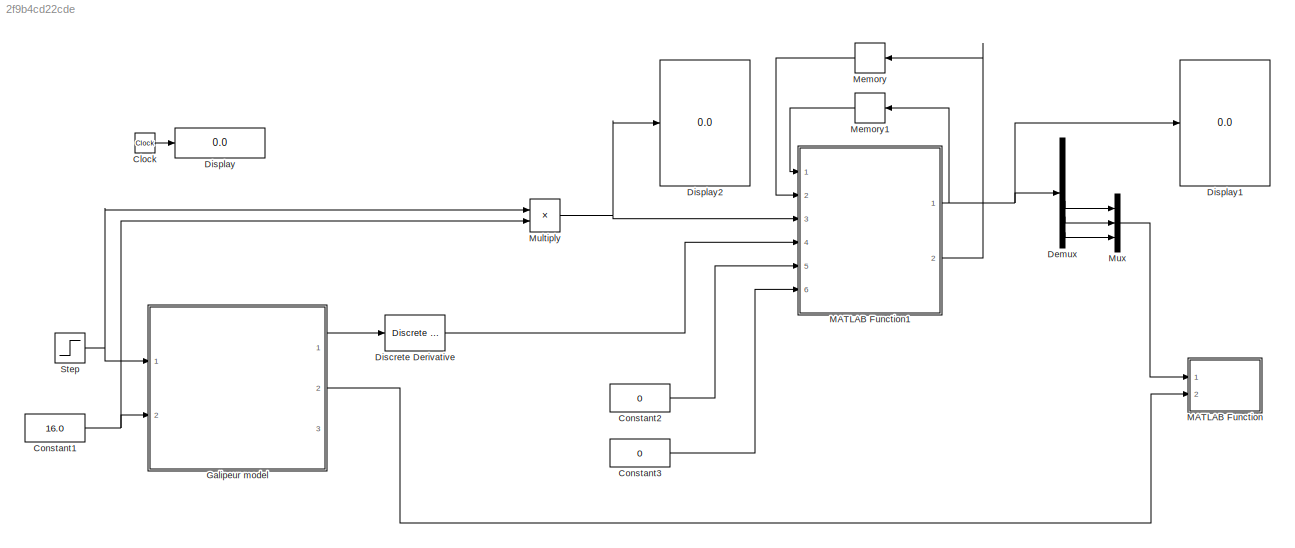
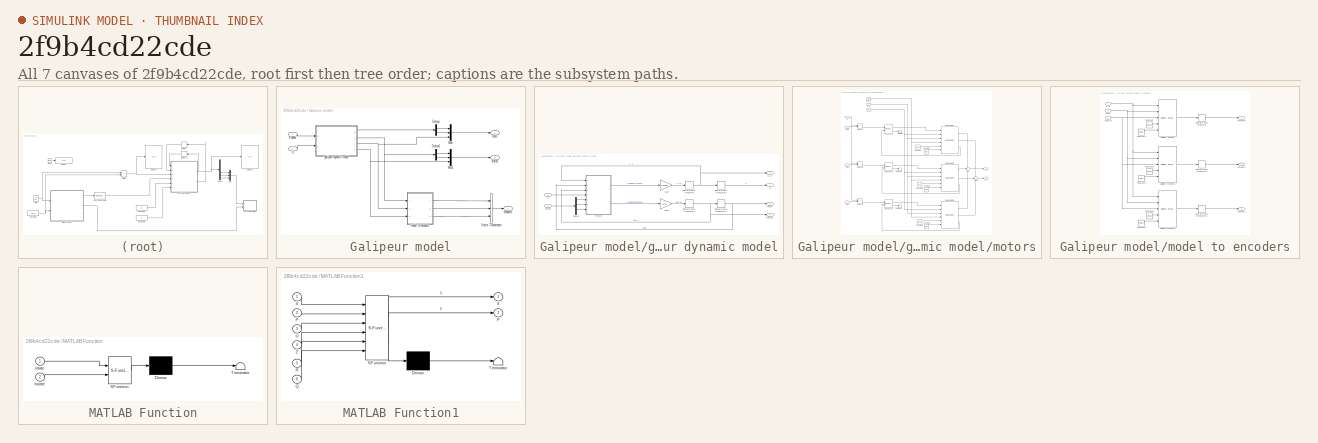
[diagram: thumbnail index - all 7 canvases of the model, root first then tree order]
MODEL slx_2f9b4cd22cde
KIND model
CONFIG AbsTol = auto
CONFIG EnableMultiTasking = off
CONFIG FixedStep = 0.02
CONFIG MaxStep = 0.05
CONFIG MinStep = auto
CONFIG RelTol = 1e-3
CONFIG SampleTimeConstraint = Unconstrained
CONFIG Solver = FixedStepAuto
CONFIG SolverName = FixedStepAuto
CONFIG StartTime = 0.0
CONFIG StopTime = 10.0
WORKSPACE source: MAT-file member
WORKSPACE FXA315_radius = 0.0254
BLOCK [Clock] Clock
BLOCK [Constant] Constant1
  Value = 16.0
  VectorParams1D = off
BLOCK [Constant] Constant2
  Value = 0
  VectorParams1D = off
BLOCK [Constant] Constant3
  Value = 0
  VectorParams1D = off
BLOCK [Demux] Demux
  DisplayOption = bar
  Outputs = 6
  Ports = [1, 6]
BLOCK [Reference] Discrete Derivative  REF=simulink/Discrete/Discrete Derivative
  Ports = [1, 1]
  SourceBlock = simulink/Discrete/Discrete Derivative
  SourceProductBaseCode = SL
  SourceProductName = Simulink
  SourceType = Discrete Derivative
BLOCK [Display] Display
  Decimation = 1
  Ports = [1]
BLOCK [Display] Display1
  Decimation = 1
  Ports = [1]
BLOCK [Display] Display2
  Decimation = 1
  Ports = [1]
BLOCK [SubSystem] Galipeur model
  Ports = [2, 3]
  RequestExecContextInheritance = off
  Variant = off
BLOCK [Demux] Galipeur model/Demux
  DisplayOption = bar
  Outputs = 2
  Ports = [1, 2]
BLOCK [Demux] Galipeur model/Demux1
  DisplayOption = bar
  Outputs = 2
  Ports = [1, 2]
BLOCK [Mux] Galipeur model/Mux
  DisplayOption = bar
  Inputs = 3
  Ports = [3, 1]
BLOCK [Mux] Galipeur model/Mux1
  DisplayOption = bar
  Inputs = 3
  Ports = [3, 1]
BLOCK [Inport] Galipeur model/PWMs
  IconDisplay = Port number
BLOCK [Inport] Galipeur model/U
  IconDisplay = Port number
  Port = 2
BLOCK [Concatenate] Galipeur model/Vector Concatenate
  NumInputs = 3
  Ports = [3, 1]
BLOCK [Outport] Galipeur model/encoders
  IconDisplay = Port number
BLOCK [SubSystem] Galipeur model/galipeur dynamic model
  Ports = [2, 4]
  RequestExecContextInheritance = off
  Variant = off
BLOCK [Demux] Galipeur model/galipeur dynamic model/Demux
  DisplayOption = bar
  Outputs = 3
  Ports = [1, 3]
BLOCK [DiscreteIntegrator] Galipeur model/galipeur dynamic model/Discrete-Time Integrator
  ICPrevOutput = DiscIntNeverNeededParam
  ICPrevScaledInput = DiscIntNeverNeededParam
  InitialConditionSetting = State (most efficient)
  Ports = [1, 1]
  SampleTime = -1
BLOCK [DiscreteIntegrator] Galipeur model/galipeur dynamic model/Discrete-Time Integrator1
  ICPrevOutput = DiscIntNeverNeededParam
  ICPrevScaledInput = DiscIntNeverNeededParam
  InitialConditionSetting = State (most efficient)
  Ports = [1, 1]
  SampleTime = -1
BLOCK [DiscreteIntegrator] Galipeur model/galipeur dynamic model/Discrete-Time Integrator2
  ICPrevOutput = DiscIntNeverNeededParam
  ICPrevScaledInput = DiscIntNeverNeededParam
  InitialConditionSetting = State (most efficient)
  Ports = [1, 1]
  SampleTime = -1
BLOCK [DiscreteIntegrator] Galipeur model/galipeur dynamic model/Discrete-Time Integrator3
  ICPrevOutput = DiscIntNeverNeededParam
  ICPrevScaledInput = DiscIntNeverNeededParam
  InitialConditionSetting = State (most efficient)
  Ports = [1, 1]
  SampleTime = -1
BLOCK [Gain] Galipeur model/galipeur dynamic model/Gain
  Gain = 1/mass
  OutDataTypeStr = Inherit: Inherit via internal rule
  ParamDataTypeStr = Inherit: Inherit via internal rule
  SaturateOnIntegerOverflow = off
BLOCK [Gain] Galipeur model/galipeur dynamic model/Gain1
  Gain = 1/Jz
  OutDataTypeStr = Inherit: Inherit via internal rule
  ParamDataTypeStr = Inherit: Inherit via internal rule
  SaturateOnIntegerOverflow = off
BLOCK [Inport] Galipeur model/galipeur dynamic model/PWMs
  IconDisplay = Port number
BLOCK [Inport] Galipeur model/galipeur dynamic model/U
  IconDisplay = Port number
  Port = 2
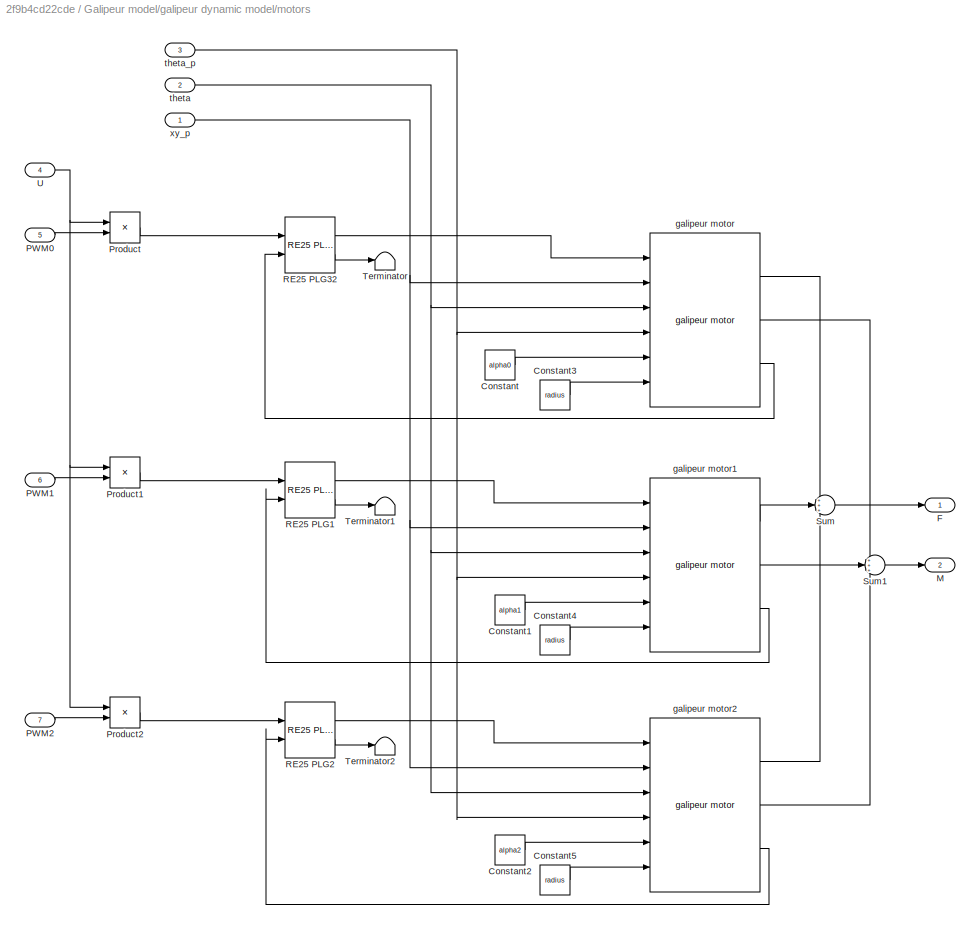
BLOCK [SubSystem] Galipeur model/galipeur dynamic model/motors
  Ports = [7, 2]
  RequestExecContextInheritance = off
  Variant = off
BLOCK [Constant] Galipeur model/galipeur dynamic model/motors/Constant
  Value = alpha0
BLOCK [Constant] Galipeur model/galipeur dynamic model/motors/Constant1
  Value = alpha1
BLOCK [Constant] Galipeur model/galipeur dynamic model/motors/Constant2
  Value = alpha2
BLOCK [Constant] Galipeur model/galipeur dynamic model/motors/Constant3
  Value = radius
BLOCK [Constant] Galipeur model/galipeur dynamic model/motors/Constant4
  Value = radius
BLOCK [Constant] Galipeur model/galipeur dynamic model/motors/Constant5
  Value = radius
BLOCK [Outport] Galipeur model/galipeur dynamic model/motors/F
  IconDisplay = Port number
BLOCK [Outport] Galipeur model/galipeur dynamic model/motors/M
  IconDisplay = Port number
  Port = 2
BLOCK [Inport] Galipeur model/galipeur dynamic model/motors/PWM0
  IconDisplay = Port number
  Port = 5
BLOCK [Inport] Galipeur model/galipeur dynamic model/motors/PWM1
  IconDisplay = Port number
  Port = 6
BLOCK [Inport] Galipeur model/galipeur dynamic model/motors/PWM2
  IconDisplay = Port number
  Port = 7
BLOCK [Product] Galipeur model/galipeur dynamic model/motors/Product
  InputSameDT = off
  OutDataTypeStr = Inherit: Inherit via internal rule
  Ports = [2, 1]
  RndMeth = Floor
  SaturateOnIntegerOverflow = off
BLOCK [Product] Galipeur model/galipeur dynamic model/motors/Product1
  InputSameDT = off
  OutDataTypeStr = Inherit: Inherit via internal rule
  Ports = [2, 1]
  RndMeth = Floor
  SaturateOnIntegerOverflow = off
BLOCK [Product] Galipeur model/galipeur dynamic model/motors/Product2
  InputSameDT = off
  OutDataTypeStr = Inherit: Inherit via internal rule
  Ports = [2, 1]
  RndMeth = Floor
  SaturateOnIntegerOverflow = off
BLOCK [Reference] Galipeur model/galipeur dynamic model/motors/RE25 PLG1  REF=galipeur_lib/RE25 PLG32  (lib defined in slx_35d7a39ee497, slx_afde5d6e38f9)
  Ports = [2, 2]
  SourceBlock = galipeur_lib/RE25 PLG32
  SourceType = SubSystem
BLOCK [Reference] Galipeur model/galipeur dynamic model/motors/RE25 PLG2  REF=galipeur_lib/RE25 PLG32  (lib defined in slx_35d7a39ee497, slx_afde5d6e38f9)
  Ports = [2, 2]
  SourceBlock = galipeur_lib/RE25 PLG32
  SourceType = SubSystem
BLOCK [Reference] Galipeur model/galipeur dynamic model/motors/RE25 PLG32  REF=galipeur_lib/RE25 PLG32  (lib defined in slx_35d7a39ee497, slx_afde5d6e38f9)
  Ports = [2, 2]
  SourceBlock = galipeur_lib/RE25 PLG32
  SourceType = SubSystem
BLOCK [Sum] Galipeur model/galipeur dynamic model/motors/Sum
  IconShape = round
  InputSameDT = off
  Inputs = +++
  OutDataTypeStr = Inherit: Inherit via internal rule
  Ports = [3, 1]
  SaturateOnIntegerOverflow = off
BLOCK [Sum] Galipeur model/galipeur dynamic model/motors/Sum1
  IconShape = round
  InputSameDT = off
  Inputs = +++
  OutDataTypeStr = Inherit: Inherit via internal rule
  Ports = [3, 1]
  SaturateOnIntegerOverflow = off
BLOCK [Terminator] Galipeur model/galipeur dynamic model/motors/Terminator
BLOCK [Terminator] Galipeur model/galipeur dynamic model/motors/Terminator1
BLOCK [Terminator] Galipeur model/galipeur dynamic model/motors/Terminator2
BLOCK [Inport] Galipeur model/galipeur dynamic model/motors/U
  IconDisplay = Port number
  Port = 4
BLOCK [Reference] Galipeur model/galipeur dynamic model/motors/galipeur motor  REF=galipeur_lib/galipeur motor  (lib defined in slx_35d7a39ee497, slx_afde5d6e38f9)
  Ports = [6, 3]
  SourceBlock = galipeur_lib/galipeur motor
  SourceType = SubSystem
BLOCK [Reference] Galipeur model/galipeur dynamic model/motors/galipeur motor1  REF=galipeur_lib/galipeur motor  (lib defined in slx_35d7a39ee497, slx_afde5d6e38f9)
  Ports = [6, 3]
  SourceBlock = galipeur_lib/galipeur motor
  SourceType = SubSystem
BLOCK [Reference] Galipeur model/galipeur dynamic model/motors/galipeur motor2  REF=galipeur_lib/galipeur motor  (lib defined in slx_35d7a39ee497, slx_afde5d6e38f9)
  Ports = [6, 3]
  SourceBlock = galipeur_lib/galipeur motor
  SourceType = SubSystem
BLOCK [Inport] Galipeur model/galipeur dynamic model/motors/theta
  IconDisplay = Port number
  Port = 2
BLOCK [Inport] Galipeur model/galipeur dynamic model/motors/theta_p
  IconDisplay = Port number
  Port = 3
BLOCK [Inport] Galipeur model/galipeur dynamic model/motors/xy_p
  IconDisplay = Port number
BLOCK [Outport] Galipeur model/galipeur dynamic model/theta
  IconDisplay = Port number
  Port = 3
BLOCK [Outport] Galipeur model/galipeur dynamic model/theta_p
  IconDisplay = Port number
  Port = 4
BLOCK [Outport] Galipeur model/galipeur dynamic model/xy 
  IconDisplay = Port number
BLOCK [Outport] Galipeur model/galipeur dynamic model/xy_p
  IconDisplay = Port number
  Port = 2
BLOCK [SubSystem] Galipeur model/model to encoders
  Ports = [3, 3]
  RequestExecContextInheritance = off
  Variant = off
BLOCK [Constant] Galipeur model/model to encoders/Constant
  Value = alpha0
BLOCK [Constant] Galipeur model/model to encoders/Constant1
  Value = radius
BLOCK [Constant] Galipeur model/model to encoders/Constant2
  Value = alpha1
BLOCK [Constant] Galipeur model/model to encoders/Constant4
  Value = radius
BLOCK [Constant] Galipeur model/model to encoders/Constant5
  Value = alpha2
BLOCK [Constant] Galipeur model/model to encoders/Constant6
  Value = radius
BLOCK [DiscreteIntegrator] Galipeur model/model to encoders/Discrete-Time Integrator
  ICPrevOutput = DiscIntNeverNeededParam
  ICPrevScaledInput = DiscIntNeverNeededParam
  InitialConditionSetting = State (most efficient)
  Ports = [1, 1]
  SampleTime = -1
BLOCK [DiscreteIntegrator] Galipeur model/model to encoders/Discrete-Time Integrator1
  ICPrevOutput = DiscIntNeverNeededParam
  ICPrevScaledInput = DiscIntNeverNeededParam
  InitialConditionSetting = State (most efficient)
  Ports = [1, 1]
  SampleTime = -1
BLOCK [DiscreteIntegrator] Galipeur model/model to encoders/Discrete-Time Integrator2
  ICPrevOutput = DiscIntNeverNeededParam
  ICPrevScaledInput = DiscIntNeverNeededParam
  InitialConditionSetting = State (most efficient)
  Ports = [1, 1]
  SampleTime = -1
BLOCK [Outport] Galipeur model/model to encoders/encoder0
  IconDisplay = Port number
BLOCK [Outport] Galipeur model/model to encoders/encoder1
  IconDisplay = Port number
  Port = 2
BLOCK [Outport] Galipeur model/model to encoders/encoder2
  IconDisplay = Port number
  Port = 3
BLOCK [Reference] Galipeur model/model to encoders/galipeur encoder  REF=galipeur_lib/galipeur encoder  (lib defined in slx_35d7a39ee497, slx_afde5d6e38f9)
  Ports = [5, 1]
  SourceBlock = galipeur_lib/galipeur encoder
  SourceType = SubSystem
BLOCK [Reference] Galipeur model/model to encoders/galipeur encoder1  REF=galipeur_lib/galipeur encoder  (lib defined in slx_35d7a39ee497, slx_afde5d6e38f9)
  Ports = [5, 1]
  SourceBlock = galipeur_lib/galipeur encoder
  SourceType = SubSystem
BLOCK [Reference] Galipeur model/model to encoders/galipeur encoder2  REF=galipeur_lib/galipeur encoder  (lib defined in slx_35d7a39ee497, slx_afde5d6e38f9)
  Ports = [5, 1]
  SourceBlock = galipeur_lib/galipeur encoder
  SourceType = SubSystem
BLOCK [Inport] Galipeur model/model to encoders/theta
  IconDisplay = Port number
  Port = 2
BLOCK [Inport] Galipeur model/model to encoders/theta_p
  IconDisplay = Port number
  Port = 3
BLOCK [Inport] Galipeur model/model to encoders/xy_p
  IconDisplay = Port number
BLOCK [Outport] Galipeur model/state
  IconDisplay = Port number
  Port = 2
BLOCK [Outport] Galipeur model/statep
  IconDisplay = Port number
  Port = 3
BLOCK [SubSystem] MATLAB Function
  ErrorFcn = Stateflow.Translate.translate
  PermitHierarchicalResolution = ExplicitOnly
  Ports = [2]
  RequestExecContextInheritance = off
  SFBlockType = MATLAB Function
  TreatAsAtomicUnit = on
  Variant = off
BLOCK [Demux] MATLAB Function/ Demux 
  Outputs = 1
  Ports = [1, 1]
BLOCK [S-Function] MATLAB Function/ SFunction 
  EnableBusSupport = on
  FunctionName = sf_sfun
  PortCounts = [2 1]
  Ports = [2, 1]
  SFcnIsStateOwnerBlock = off
  SFunctionDeploymentMode = off
  Tag = Stateflow S-Function galipeur 3
BLOCK [Terminator] MATLAB Function/ Terminator 
BLOCK [Inport] MATLAB Function/bstate
  IconDisplay = Port number
  Port = 2
BLOCK [Inport] MATLAB Function/rstate
  IconDisplay = Port number
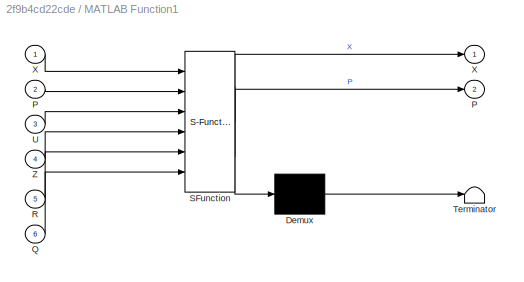
BLOCK [SubSystem] MATLAB Function1
  ErrorFcn = Stateflow.Translate.translate
  PermitHierarchicalResolution = ExplicitOnly
  Ports = [6, 2]
  RequestExecContextInheritance = off
  SFBlockType = MATLAB Function
  TreatAsAtomicUnit = on
  Variant = off
BLOCK [Demux] MATLAB Function1/ Demux 
  Outputs = 1
  Ports = [1, 1]
BLOCK [S-Function] MATLAB Function1/ SFunction 
  EnableBusSupport = on
  FunctionName = sf_sfun
  PortCounts = [6 3]
  Ports = [6, 3]
  SFcnIsStateOwnerBlock = off
  SFunctionDeploymentMode = off
  Tag = Stateflow S-Function galipeur 2
BLOCK [Terminator] MATLAB Function1/ Terminator 
BLOCK [Outport] MATLAB Function1/P
  IconDisplay = Port number
  Port = 2
BLOCK [Inport] MATLAB Function1/P 
  IconDisplay = Port number
  Port = 2
BLOCK [Inport] MATLAB Function1/Q
  IconDisplay = Port number
  Port = 6
BLOCK [Inport] MATLAB Function1/R
  IconDisplay = Port number
  Port = 5
BLOCK [Inport] MATLAB Function1/U
  IconDisplay = Port number
  Port = 3
BLOCK [Outport] MATLAB Function1/X
  IconDisplay = Port number
BLOCK [Inport] MATLAB Function1/X 
  IconDisplay = Port number
BLOCK [Inport] MATLAB Function1/Z
  IconDisplay = Port number
  Port = 4
BLOCK [Memory] Memory
BLOCK [Memory] Memory1
  X0 = zeros(6,1)
BLOCK [Product] Multiply
  InputSameDT = off
  Inputs = **
  OutDataTypeStr = Inherit: Inherit via internal rule
  Ports = [2, 1]
  RndMeth = Floor
  SaturateOnIntegerOverflow = off
BLOCK [Mux] Mux
  DisplayOption = bar
  Inputs = 3
  Ports = [3, 1]
BLOCK [Step] Step
  After = [0;0;0]
  Before = [-1;0.5;0.5]
  SampleTime = 0
  Time = 5
  VectorParams1D = off
LINE Clock:1 -> Display:1
NET Constant1:1 -> Galipeur model:2, Multiply:2
LINE Constant2:1 -> MATLAB Function1:5
LINE Constant3:1 -> MATLAB Function1:6
LINE Demux:4 -> Mux:1
LINE Demux:5 -> Mux:2
LINE Demux:6 -> Mux:3
LINE Discrete Derivative:1 -> MATLAB Function1:4
LINE Galipeur model/Demux1:1 -> Galipeur model/Mux1:1
LINE Galipeur model/Demux1:2 -> Galipeur model/Mux1:2
LINE Galipeur model/Demux:1 -> Galipeur model/Mux:1
LINE Galipeur model/Demux:2 -> Galipeur model/Mux:2
LINE Galipeur model/Mux1:1 -> Galipeur model/statep:1
LINE Galipeur model/Mux:1 -> Galipeur model/state:1
LINE Galipeur model/PWMs:1 -> Galipeur model/galipeur dynamic model:1
LINE Galipeur model/U:1 -> Galipeur model/galipeur dynamic model:2
LINE Galipeur model/Vector Concatenate:1 -> Galipeur model/encoders:1
LINE Galipeur model/galipeur dynamic model/Demux:1 -> Galipeur model/galipeur dynamic model/motors:5
LINE Galipeur model/galipeur dynamic model/Demux:2 -> Galipeur model/galipeur dynamic model/motors:6
LINE Galipeur model/galipeur dynamic model/Demux:3 -> Galipeur model/galipeur dynamic model/motors:7
NET Galipeur model/galipeur dynamic model/Discrete-Time Integrator1:1 -> Galipeur model/galipeur dynamic model/Discrete-Time Integrator3:1, Galipeur model/galipeur dynamic model/motors:3, Galipeur model/galipeur dynamic model/theta_p:1
LINE Galipeur model/galipeur dynamic model/Discrete-Time Integrator2:1 -> Galipeur model/galipeur dynamic model/xy :1
NET Galipeur model/galipeur dynamic model/Discrete-Time Integrator3:1 -> Galipeur model/galipeur dynamic model/motors:2, Galipeur model/galipeur dynamic model/theta:1
NET Galipeur model/galipeur dynamic model/Discrete-Time Integrator:1 -> Galipeur model/galipeur dynamic model/Discrete-Time Integrator2:1, Galipeur model/galipeur dynamic model/motors:1, Galipeur model/galipeur dynamic model/xy_p:1
LINE Galipeur model/galipeur dynamic model/Gain1:1 -> Galipeur model/galipeur dynamic model/Discrete-Time Integrator1:1
LINE Galipeur model/galipeur dynamic model/Gain:1 -> Galipeur model/galipeur dynamic model/Discrete-Time Integrator:1
LINE Galipeur model/galipeur dynamic model/PWMs:1 -> Galipeur model/galipeur dynamic model/Demux:1
LINE Galipeur model/galipeur dynamic model/U:1 -> Galipeur model/galipeur dynamic model/motors:4
LINE Galipeur model/galipeur dynamic model/motors/Constant1:1 -> Galipeur model/galipeur dynamic model/motors/galipeur motor1:5
LINE Galipeur model/galipeur dynamic model/motors/Constant2:1 -> Galipeur model/galipeur dynamic model/motors/galipeur motor2:5
LINE Galipeur model/galipeur dynamic model/motors/Constant3:1 -> Galipeur model/galipeur dynamic model/motors/galipeur motor:6
LINE Galipeur model/galipeur dynamic model/motors/Constant4:1 -> Galipeur model/galipeur dynamic model/motors/galipeur motor1:6
LINE Galipeur model/galipeur dynamic model/motors/Constant5:1 -> Galipeur model/galipeur dynamic model/motors/galipeur motor2:6
LINE Galipeur model/galipeur dynamic model/motors/Constant:1 -> Galipeur model/galipeur dynamic model/motors/galipeur motor:5
LINE Galipeur model/galipeur dynamic model/motors/PWM0:1 -> Galipeur model/galipeur dynamic model/motors/Product:2
LINE Galipeur model/galipeur dynamic model/motors/PWM1:1 -> Galipeur model/galipeur dynamic model/motors/Product1:2
LINE Galipeur model/galipeur dynamic model/motors/PWM2:1 -> Galipeur model/galipeur dynamic model/motors/Product2:2
LINE Galipeur model/galipeur dynamic model/motors/Product1:1 -> Galipeur model/galipeur dynamic model/motors/RE25 PLG1:1
LINE Galipeur model/galipeur dynamic model/motors/Product2:1 -> Galipeur model/galipeur dynamic model/motors/RE25 PLG2:1
LINE Galipeur model/galipeur dynamic model/motors/Product:1 -> Galipeur model/galipeur dynamic model/motors/RE25 PLG32:1
LINE Galipeur model/galipeur dynamic model/motors/RE25 PLG1:1 -> Galipeur model/galipeur dynamic model/motors/galipeur motor1:1
LINE Galipeur model/galipeur dynamic model/motors/RE25 PLG1:2 -> Galipeur model/galipeur dynamic model/motors/Terminator1:1
LINE Galipeur model/galipeur dynamic model/motors/RE25 PLG2:1 -> Galipeur model/galipeur dynamic model/motors/galipeur motor2:1
LINE Galipeur model/galipeur dynamic model/motors/RE25 PLG2:2 -> Galipeur model/galipeur dynamic model/motors/Terminator2:1
LINE Galipeur model/galipeur dynamic model/motors/RE25 PLG32:1 -> Galipeur model/galipeur dynamic model/motors/galipeur motor:1
LINE Galipeur model/galipeur dynamic model/motors/RE25 PLG32:2 -> Galipeur model/galipeur dynamic model/motors/Terminator:1
LINE Galipeur model/galipeur dynamic model/motors/Sum1:1 -> Galipeur model/galipeur dynamic model/motors/M:1
LINE Galipeur model/galipeur dynamic model/motors/Sum:1 -> Galipeur model/galipeur dynamic model/motors/F:1
NET Galipeur model/galipeur dynamic model/motors/U:1 -> Galipeur model/galipeur dynamic model/motors/Product1:1, Galipeur model/galipeur dynamic model/motors/Product2:1, Galipeur model/galipeur dynamic model/motors/Product:1
LINE Galipeur model/galipeur dynamic model/motors/galipeur motor1:1 -> Galipeur model/galipeur dynamic model/motors/Sum:2
LINE Galipeur model/galipeur dynamic model/motors/galipeur motor1:2 -> Galipeur model/galipeur dynamic model/motors/Sum1:2
LINE Galipeur model/galipeur dynamic model/motors/galipeur motor1:3 -> Galipeur model/galipeur dynamic model/motors/RE25 PLG1:2
LINE Galipeur model/galipeur dynamic model/motors/galipeur motor2:1 -> Galipeur model/galipeur dynamic model/motors/Sum:3
LINE Galipeur model/galipeur dynamic model/motors/galipeur motor2:2 -> Galipeur model/galipeur dynamic model/motors/Sum1:3
LINE Galipeur model/galipeur dynamic model/motors/galipeur motor2:3 -> Galipeur model/galipeur dynamic model/motors/RE25 PLG2:2
LINE Galipeur model/galipeur dynamic model/motors/galipeur motor:1 -> Galipeur model/galipeur dynamic model/motors/Sum:1
LINE Galipeur model/galipeur dynamic model/motors/galipeur motor:2 -> Galipeur model/galipeur dynamic model/motors/Sum1:1
LINE Galipeur model/galipeur dynamic model/motors/galipeur motor:3 -> Galipeur model/galipeur dynamic model/motors/RE25 PLG32:2
NET Galipeur model/galipeur dynamic model/motors/theta:1 -> Galipeur model/galipeur dynamic model/motors/galipeur motor1:3, Galipeur model/galipeur dynamic model/motors/galipeur motor2:3, Galipeur model/galipeur dynamic model/motors/galipeur motor:3
NET Galipeur model/galipeur dynamic model/motors/theta_p:1 -> Galipeur model/galipeur dynamic model/motors/galipeur motor1:4, Galipeur model/galipeur dynamic model/motors/galipeur motor2:4, Galipeur model/galipeur dynamic model/motors/galipeur motor:4
NET Galipeur model/galipeur dynamic model/motors/xy_p:1 -> Galipeur model/galipeur dynamic model/motors/galipeur motor1:2, Galipeur model/galipeur dynamic model/motors/galipeur motor2:2, Galipeur model/galipeur dynamic model/motors/galipeur motor:2
LINE Galipeur model/galipeur dynamic model/motors:1 -> Galipeur model/galipeur dynamic model/Gain:1
LINE Galipeur model/galipeur dynamic model/motors:2 -> Galipeur model/galipeur dynamic model/Gain1:1
LINE Galipeur model/galipeur dynamic model:1 -> Galipeur model/Demux:1
NET Galipeur model/galipeur dynamic model:2 -> Galipeur model/Demux1:1, Galipeur model/model to encoders:1
NET Galipeur model/galipeur dynamic model:3 -> Galipeur model/Mux:3, Galipeur model/model to encoders:2
NET Galipeur model/galipeur dynamic model:4 -> Galipeur model/Mux1:3, Galipeur model/model to encoders:3
LINE Galipeur model/model to encoders/Constant1:1 -> Galipeur model/model to encoders/galipeur encoder:5
LINE Galipeur model/model to encoders/Constant2:1 -> Galipeur model/model to encoders/galipeur encoder1:4
LINE Galipeur model/model to encoders/Constant4:1 -> Galipeur model/model to encoders/galipeur encoder1:5
LINE Galipeur model/model to encoders/Constant5:1 -> Galipeur model/model to encoders/galipeur encoder2:4
LINE Galipeur model/model to encoders/Constant6:1 -> Galipeur model/model to encoders/galipeur encoder2:5
LINE Galipeur model/model to encoders/Constant:1 -> Galipeur model/model to encoders/galipeur encoder:4
LINE Galipeur model/model to encoders/Discrete-Time Integrator1:1 -> Galipeur model/model to encoders/encoder1:1
LINE Galipeur model/model to encoders/Discrete-Time Integrator2:1 -> Galipeur model/model to encoders/encoder2:1
LINE Galipeur model/model to encoders/Discrete-Time Integrator:1 -> Galipeur model/model to encoders/encoder0:1
LINE Galipeur model/model to encoders/galipeur encoder1:1 -> Galipeur model/model to encoders/Discrete-Time Integrator1:1
LINE Galipeur model/model to encoders/galipeur encoder2:1 -> Galipeur model/model to encoders/Discrete-Time Integrator2:1
LINE Galipeur model/model to encoders/galipeur encoder:1 -> Galipeur model/model to encoders/Discrete-Time Integrator:1
NET Galipeur model/model to encoders/theta:1 -> Galipeur model/model to encoders/galipeur encoder1:2, Galipeur model/model to encoders/galipeur encoder2:2, Galipeur model/model to encoders/galipeur encoder:2
NET Galipeur model/model to encoders/theta_p:1 -> Galipeur model/model to encoders/galipeur encoder1:3, Galipeur model/model to encoders/galipeur encoder2:3, Galipeur model/model to encoders/galipeur encoder:3
NET Galipeur model/model to encoders/xy_p:1 -> Galipeur model/model to encoders/galipeur encoder1:1, Galipeur model/model to encoders/galipeur encoder2:1, Galipeur model/model to encoders/galipeur encoder:1
LINE Galipeur model/model to encoders:1 -> Galipeur model/Vector Concatenate:1
LINE Galipeur model/model to encoders:2 -> Galipeur model/Vector Concatenate:2
LINE Galipeur model/model to encoders:3 -> Galipeur model/Vector Concatenate:3
LINE Galipeur model:1 -> Discrete Derivative:1
LINE Galipeur model:2 -> MATLAB Function:2
NET MATLAB Function1:1 -> Demux:1, Display1:1, Memory1:1
LINE MATLAB Function1:2 -> Memory:1
LINE Memory1:1 -> MATLAB Function1:1
LINE Memory:1 -> MATLAB Function1:2
NET Multiply:1 -> Display2:1, MATLAB Function1:3
LINE Mux:1 -> MATLAB Function:1
NET Step:1 -> Galipeur model:1, Multiply:1
note: NET lines group one-source signal fan-out (src -> all destinations, sorted); 1:1 wires keep LINE
CHART MATLAB Function1 states=1 transitions=1
  STATE_LABEL 'eML_blk_kernel()'
  STATE_LABEL 'SCRIPT:\nfunction [X,P] = galipeur_ekf(X,P,U,Z,R,Q)\n\n    % wheels angles\n    alpha = [pi/2, pi/2 + 2*pi/3, pi/2 + 4*pi/3];\n    % time integration step\n    dt = 0.02;\n    % wheel radius (include reduction from gear train)\n    Rw = 0.0254 / 50.0;\n    % robot radius (from center to wheel contact)\n    Rr = 0.3;\n    % robot moment of inertia along z\n    Jz = 3;\n    % robot mass\n    m = 3;\n    % motor to...<+1084ch>'
CHART MATLAB Function states=1 transitions=1
  STATE_LABEL 'eML_blk_kernel()'
  STATE_LABEL "SCRIPT:\nfunction fcn(rstate,bstate)\n% plot robot\nstate=rstate;\nxy=[state(1);state(2)];\ntheta=[state(3)];\na0=pi/2;\na1=pi/2 + 2*pi/3;\na2=pi/2 + 4*pi/3;\nR=0.3;\np0 = xy + R*[cos(a0+theta); sin(a0+theta)];\np1 = xy + R*[cos(a1+theta); sin(a1+theta)];\np2 = xy + R*[cos(a2+theta); sin(a2+theta)];\n\n\nhold off\nplot([p0(1) p1(1) p2(1) p0(1)],[p0(2) p1(2) p2(2) p0(2)],'r-')\nxlim([-3 3])\nylim([-3 3])\n\nstate=bsta...<+333ch>"
